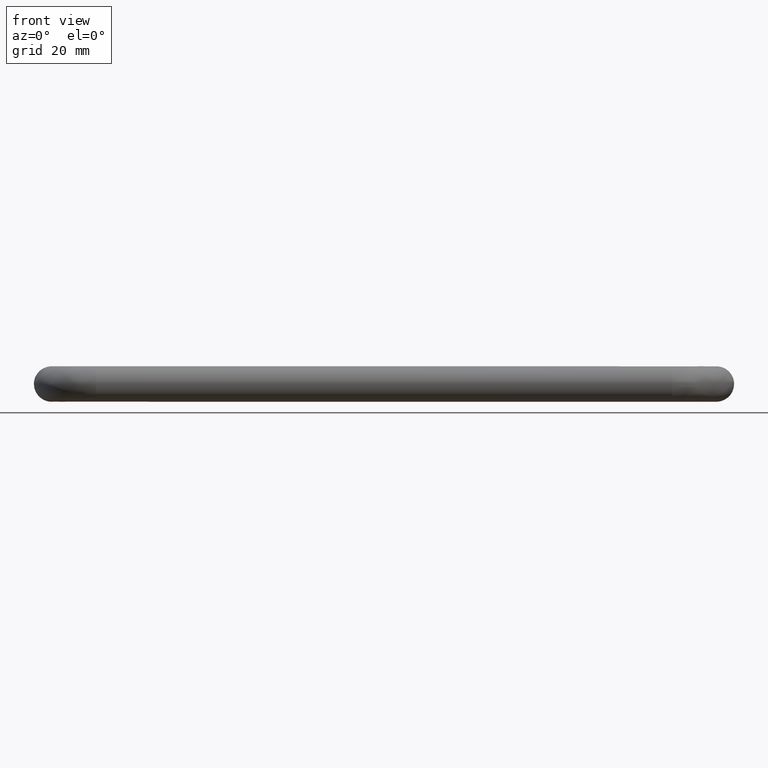
[diagram: clean part render]
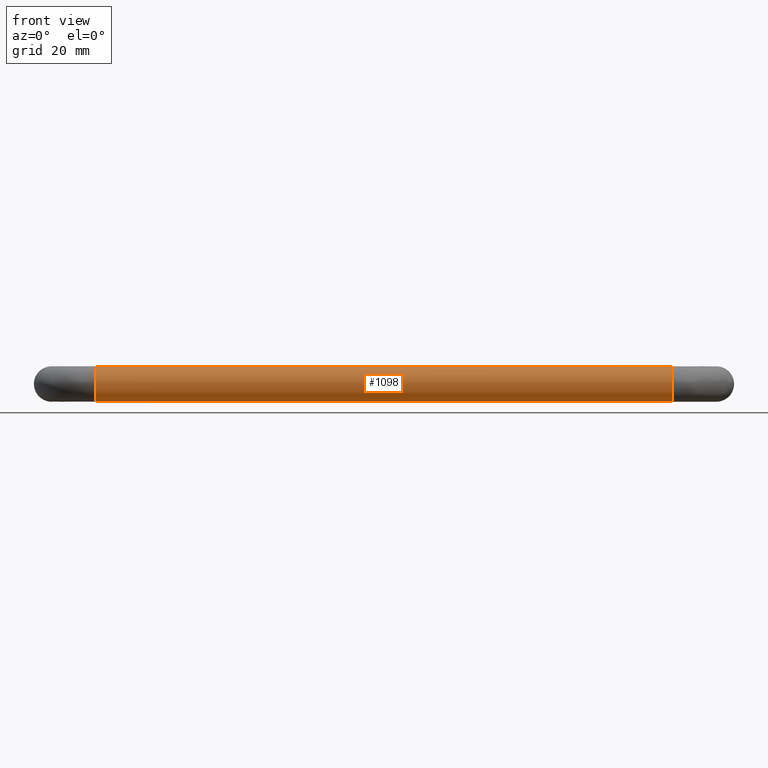
[diagram: same view with one face highlighted and labeled with its STEP entity id]
A machine part, front view. The second image highlights one B-rep face of the part: STEP entity #1098.
In plain terms, the highlighted face is a freeform B-spline surface patch.
Its self-contained STEP definition (entity closure, byte-faithful):
#928=CARTESIAN_POINT('',(6.749999998630599,-23.417578029456681,1.779396758727104));
#929=CARTESIAN_POINT('',(6.749999998630598,-23.684880976469948,2.317552145081927));
#930=CARTESIAN_POINT('',(6.749999998630598,-24.098502515950852,2.753418302775015));
#931=CARTESIAN_POINT('',(6.749999998630598,-26.851920818725862,5.654915786824165));
#932=CARTESIAN_POINT('',(6.749999998630598,-29.753418302775010,2.901497484049150));
#933=CARTESIAN_POINT('',(6.749999998630598,-32.654915786824162,0.148079181274134));
#934=CARTESIAN_POINT('',(6.749999998630598,-29.901497484049148,-2.753418302775015));
#935=CARTESIAN_POINT('',(6.749999998630598,-27.148079181274138,-5.654915786824165));
#936=CARTESIAN_POINT('',(6.749999998630598,-24.246581697224990,-2.901497484049150));
#937=CARTESIAN_POINT('',(143.331250010542190,-23.417578029456667,1.779396758727104));
#938=CARTESIAN_POINT('',(143.331250010542190,-23.684880976469938,2.317552145081927));
#939=CARTESIAN_POINT('',(143.331250010542190,-24.098502515950830,2.753418302775015));
#940=CARTESIAN_POINT('',(143.331250010542190,-26.851920818725848,5.654915786824165));
#941=CARTESIAN_POINT('',(143.331250010542190,-29.753418302775000,2.901497484049150));
#942=CARTESIAN_POINT('',(143.331250010542190,-32.654915786824148,0.148079181274134));
#943=CARTESIAN_POINT('',(143.331250010542190,-29.901497484049131,-2.753418302775015));
#944=CARTESIAN_POINT('',(143.331250010542190,-27.148079181274127,-5.654915786824165));
#945=CARTESIAN_POINT('',(143.331250010542190,-24.246581697224968,-2.901497484049150));
#953=(BOUNDED_SURFACE()B_SPLINE_SURFACE(2,1,((#928,#937),(#929,#938),(#930,#939),(#931,#940),(#932,#941),(#933,#942),(#934,#943),(#935,#944),(#936,#945)),.UNSPECIFIED.,.F.,.F.,.U.)B_SPLINE_SURFACE_WITH_KNOTS((3,2,2,2,3),(2,2),(0.0,1.325483399593904,7.952900397563423,14.580317395532941,21.207734393502459),(0.0,136.581250011911610),.UNSPECIFIED.)GEOMETRIC_REPRESENTATION_ITEM()RATIONAL_B_SPLINE_SURFACE(((0.906274169979695,0.906274169979695),(0.941421356237309,0.941421356237309),(1.0,1.0),(0.707106781186548,0.707106781186548),(1.0,1.0),(0.707106781186548,0.707106781186548),(1.0,1.0),(0.707106781186548,0.707106781186548),(1.0,1.0)))REPRESENTATION_ITEM('')SURFACE());
#954=CARTESIAN_POINT('',(140.0,-23.417578029477610,1.779396758769257));
#955=VERTEX_POINT('',#954);
#956=CARTESIAN_POINT('',(140.000000010251710,-27.278933189776939,3.990262682536179));
#957=VERTEX_POINT('',#956);
#958=CARTESIAN_POINT('',(140.000000000000030,-23.417578029477614,1.779396758769256));
#959=CARTESIAN_POINT('',(139.999999999999940,-24.520556473275803,4.0));
#960=CARTESIAN_POINT('',(140.0,-27.0,4.0));
#961=CARTESIAN_POINT('',(139.999999999999970,-27.139636647645887,4.0));
#962=CARTESIAN_POINT('',(140.000000010251650,-27.278933189776939,3.990262682536178));
#970=(BOUNDED_CURVE()B_SPLINE_CURVE(2,(#958,#959,#960,#961,#962),.UNSPECIFIED.,.F.,.U.)B_SPLINE_CURVE_WITH_KNOTS((3,2,3),(0.575619190626044,0.750000000000000,0.762166329280624),.UNSPECIFIED.)CURVE()GEOMETRIC_REPRESENTATION_ITEM()RATIONAL_B_SPLINE_CURVE((0.876408099965181,0.795700173772668,1.0,0.985746258623414,0.972879842935376))REPRESENTATION_ITEM(''));
#971=EDGE_CURVE('',#955,#957,#970,.T.);
#972=ORIENTED_EDGE('',*,*,#971,.F.);
#973=CARTESIAN_POINT('',(9.999999999885187,-23.417578029538809,1.779396758739924));
#974=VERTEX_POINT('',#973);
#975=CARTESIAN_POINT('',(9.999999999885187,-23.417578029538809,1.779396758739924));
#976=CARTESIAN_POINT('',(140.0,-23.417578029477610,1.779396758769257));
#977=QUASI_UNIFORM_CURVE('',1,(#975,#976),.UNSPECIFIED.,.F.,.U.);
#978=EDGE_CURVE('',#974,#955,#977,.T.);
#979=ORIENTED_EDGE('',*,*,#978,.F.);
#980=CARTESIAN_POINT('',(9.999999998914040,-26.949735839024481,3.999684176797141));
#981=VERTEX_POINT('',#980);
#982=CARTESIAN_POINT('',(9.999999999885187,-23.417578029538809,1.779396758739924));
#983=CARTESIAN_POINT('',(9.999999999586169,-24.505140260979935,3.968962863876078));
#984=CARTESIAN_POINT('',(9.999999998914040,-26.949735839024488,3.999684176797141));
#992=(BOUNDED_CURVE()B_SPLINE_CURVE(2,(#982,#983,#984),.UNSPECIFIED.,.F.,.U.)B_SPLINE_CURVE_WITH_KNOTS((3,3),(0.575619190623424,0.747784295794908),.UNSPECIFIED.)CURVE()GEOMETRIC_REPRESENTATION_ITEM()RATIONAL_B_SPLINE_CURVE((0.876408099967606,0.796725658695953,0.994854295352122))REPRESENTATION_ITEM(''));
#993=EDGE_CURVE('',#974,#981,#992,.T.);
#994=ORIENTED_EDGE('',*,*,#993,.T.);
#995=CARTESIAN_POINT('',(10.0,-31.0,0.0));
#996=VERTEX_POINT('',#995);
#997=CARTESIAN_POINT('',(9.999999998914040,-26.949735839024481,3.999684176797141));
#998=CARTESIAN_POINT('',(10.0,-26.974866926590163,4.0));
#999=CARTESIAN_POINT('',(10.0,-27.0,4.0));
#1000=CARTESIAN_POINT('',(10.000000000000002,-31.000000000000007,4.000000000000000));
#1001=CARTESIAN_POINT('',(10.0,-31.0,0.0));
#1009=(BOUNDED_CURVE()B_SPLINE_CURVE(2,(#997,#998,#999,#1000,#1001),.UNSPECIFIED.,.F.,.U.)B_SPLINE_CURVE_WITH_KNOTS((3,2,3),(0.747784295794909,0.750000000000000,1.0),.UNSPECIFIED.)CURVE()GEOMETRIC_REPRESENTATION_ITEM()RATIONAL_B_SPLINE_CURVE((0.994854295352123,0.997404141053729,1.0,0.707106781186548,1.0))REPRESENTATION_ITEM(''));
#1010=EDGE_CURVE('',#981,#996,#1009,.T.);
#1011=ORIENTED_EDGE('',*,*,#1010,.T.);
#1012=CARTESIAN_POINT('',(9.999999999857518,-27.278933006948471,-3.990262695316522));
#1013=VERTEX_POINT('',#1012);
#1014=CARTESIAN_POINT('',(10.0,-31.0,0.0));
#1015=CARTESIAN_POINT('',(10.0,-31.000000000000011,-3.730147387854432));
#1016=CARTESIAN_POINT('',(9.999999999857518,-27.278933006948474,-3.990262695316523));
#1024=(BOUNDED_CURVE()B_SPLINE_CURVE(2,(#1014,#1015,#1016),.UNSPECIFIED.,.F.,.U.)B_SPLINE_CURVE_WITH_KNOTS((3,3),(0.0,0.237833686479388),.UNSPECIFIED.)CURVE()GEOMETRIC_REPRESENTATION_ITEM()RATIONAL_B_SPLINE_CURVE((1.0,0.721360504099130,0.972879876269158))REPRESENTATION_ITEM(''));
#1025=EDGE_CURVE('',#996,#1013,#1024,.T.);
#1026=ORIENTED_EDGE('',*,*,#1025,.T.);
#1027=CARTESIAN_POINT('',(10.0,-24.246582505429380,-2.901498251006061));
#1028=VERTEX_POINT('',#1027);
#1029=CARTESIAN_POINT('',(9.999999999857518,-27.278933006948471,-3.990262695316522));
#1030=CARTESIAN_POINT('',(10.000000000000002,-27.139636464147920,-4.0));
#1031=CARTESIAN_POINT('',(10.0,-27.0,-4.0));
#1032=CARTESIAN_POINT('',(9.999999999999998,-25.404162461871636,-4.0));
#1033=CARTESIAN_POINT('',(10.0,-24.246582505429387,-2.901498251006061));
#1041=(BOUNDED_CURVE()B_SPLINE_CURVE(2,(#1029,#1030,#1031,#1032,#1033),.UNSPECIFIED.,.F.,.U.)B_SPLINE_CURVE_WITH_KNOTS((3,2,3),(0.237833686479388,0.250000000000000,0.371049484622336),.UNSPECIFIED.)CURVE()GEOMETRIC_REPRESENTATION_ITEM()RATIONAL_B_SPLINE_CURVE((0.972879876269158,0.985746277087417,1.0,0.858181707253018,0.853699664482370))REPRESENTATION_ITEM(''));
#1042=EDGE_CURVE('',#1013,#1028,#1041,.T.);
#1043=ORIENTED_EDGE('',*,*,#1042,.T.);
#1044=CARTESIAN_POINT('',(140.000000000115700,-24.246582932973361,-2.901498656702296));
#1045=VERTEX_POINT('',#1044);
#1046=CARTESIAN_POINT('',(10.0,-24.246582505429380,-2.901498251006061));
#1047=CARTESIAN_POINT('',(140.000000000115700,-24.246582932973361,-2.901498656702296));
#1048=QUASI_UNIFORM_CURVE('',1,(#1046,#1047),.UNSPECIFIED.,.F.,.U.);
#1049=EDGE_CURVE('',#1028,#1045,#1048,.T.);
#1050=ORIENTED_EDGE('',*,*,#1049,.T.);
#1051=CARTESIAN_POINT('',(140.000000000366700,-26.949735840281949,-3.999684176812943));
#1052=VERTEX_POINT('',#1051);
#1053=CARTESIAN_POINT('',(140.000000000366700,-26.949735840281949,-3.999684176812943));
#1054=CARTESIAN_POINT('',(140.000000000221290,-25.383082967628233,-3.979995999691451));
#1055=CARTESIAN_POINT('',(140.000000000115760,-24.246582932973364,-2.901498656702296));
#1063=(BOUNDED_CURVE()B_SPLINE_CURVE(2,(#1053,#1054,#1055),.UNSPECIFIED.,.F.,.U.)B_SPLINE_CURVE_WITH_KNOTS((3,3),(0.252215704094509,0.371049462387032),.UNSPECIFIED.)CURVE()GEOMETRIC_REPRESENTATION_ITEM()RATIONAL_B_SPLINE_CURVE((0.994854295606640,0.858099693000149,0.853699666128967))REPRESENTATION_ITEM(''));
#1064=EDGE_CURVE('',#1052,#1045,#1063,.T.);
#1065=ORIENTED_EDGE('',*,*,#1064,.F.);
#1066=CARTESIAN_POINT('',(140.0,-31.0,0.0));
#1067=VERTEX_POINT('',#1066);
#1068=CARTESIAN_POINT('',(140.0,-31.0,0.0));
#1069=CARTESIAN_POINT('',(140.0,-31.000000000000007,-4.000000000000000));
#1070=CARTESIAN_POINT('',(140.0,-27.0,-4.0));
#1071=CARTESIAN_POINT('',(140.000000000000030,-26.974866927847774,-4.0));
#1072=CARTESIAN_POINT('',(140.000000000366700,-26.949735840281953,-3.999684176812943));
#1080=(BOUNDED_CURVE()B_SPLINE_CURVE(2,(#1068,#1069,#1070,#1071,#1072),.UNSPECIFIED.,.F.,.U.)B_SPLINE_CURVE_WITH_KNOTS((3,2,3),(0.0,0.250000000000000,0.252215704094509),.UNSPECIFIED.)CURVE()GEOMETRIC_REPRESENTATION_ITEM()RATIONAL_B_SPLINE_CURVE((1.0,0.707106781186548,1.0,0.997404141183284,0.994854295606640))REPRESENTATION_ITEM(''));
#1081=EDGE_CURVE('',#1067,#1052,#1080,.T.);
#1082=ORIENTED_EDGE('',*,*,#1081,.F.);
#1083=CARTESIAN_POINT('',(140.000000010251680,-27.278933189776936,3.990262682536179));
#1084=CARTESIAN_POINT('',(140.000000000000060,-31.000000000000004,3.730147045199646));
#1085=CARTESIAN_POINT('',(140.0,-31.0,0.0));
#1093=(BOUNDED_CURVE()B_SPLINE_CURVE(2,(#1083,#1084,#1085),.UNSPECIFIED.,.F.,.U.)B_SPLINE_CURVE_WITH_KNOTS((3,3),(0.762166329280624,1.0),.UNSPECIFIED.)CURVE()GEOMETRIC_REPRESENTATION_ITEM()RATIONAL_B_SPLINE_CURVE((0.972879842935376,0.721360522563133,1.0))REPRESENTATION_ITEM(''));
#1094=EDGE_CURVE('',#957,#1067,#1093,.T.);
#1095=ORIENTED_EDGE('',*,*,#1094,.F.);
#1096=EDGE_LOOP('',(#972,#979,#994,#1011,#1026,#1043,#1050,#1065,#1082,#1095));
#1097=FACE_OUTER_BOUND('',#1096,.T.);
#1098=ADVANCED_FACE('',(#1097),#953,.T.);